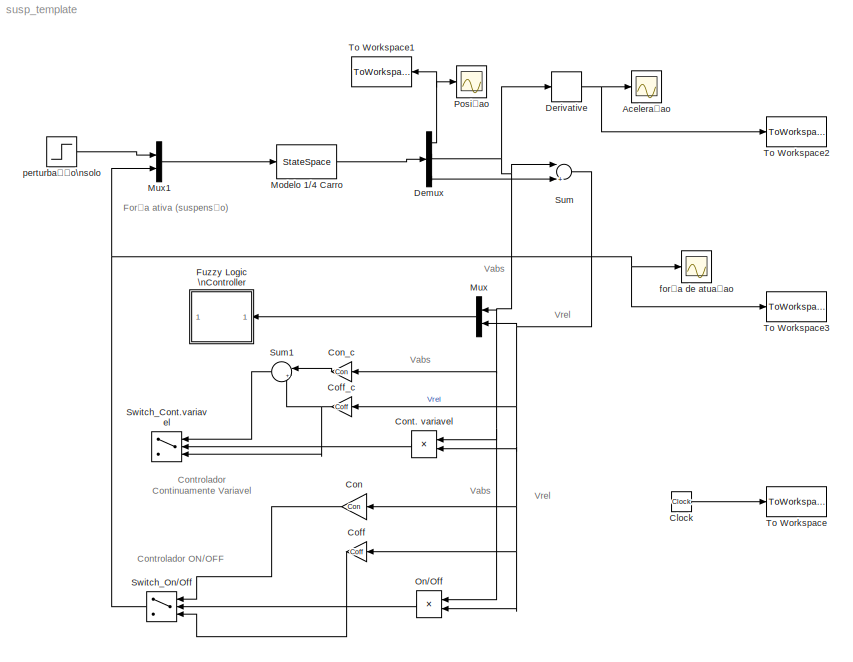
MODEL susp_template
KIND model
BLOCK [Scope] Aceleraçao
  DataFormat = StructureWithTime
  Floating = off
  NumInputPorts = 1
  Ports = [1]
  SampleTime = 0
  SaveName = Aceleraçao
  TimeRange = 2
  YMax = 1
  YMin = -2
BLOCK [Clock] Clock
  Decimation = 10
BLOCK [Gain] Coff
  Gain = Coff
BLOCK [Gain] Coff_c
  Gain = Coff
BLOCK [Gain] Con
  Gain = Con
BLOCK [Gain] Con_c
  Gain = Con
BLOCK [Product] Cont. variavel
  InputSameDT = off
  Ports = [2, 1]
  RndMeth = Floor
BLOCK [Demux] Demux
  Ports = [1, 4]
BLOCK [Derivative] Derivative
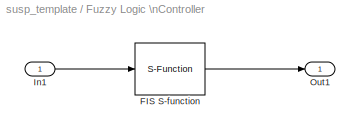
BLOCK [SubSystem] Fuzzy Logic \nController
  AncestorBlock = fuzblock/Fuzzy Logic \nController
  MaskDescription = FIS
  MaskDisplay = plot(0, -0.3, 6, -0.3, 0, 1.2, 6, 1.2, [0 6], [0 0], [1 2 3],[0 1 0],[2 3 4],[0 1 0],[3 4 5],[0 1 0])
  MaskEnableString = on
  MaskHelp = web(['file:///' docroot '/toolbox/fuzzy/fuzzylogiccontroller.html']);
  MaskHideContents = off
  MaskIconFrame = on
  MaskIconOpaque = on
  MaskIconRotate = none
  MaskIconUnits = autoscale
  MaskInitialization = fis = fuzblockmask(gcb,fis);
  MaskPromptString = FIS File or Structure:
  MaskSelfModifiable = on
  MaskStyleString = edit
  MaskToolTipString = on
  MaskTunableValueString = on
  MaskType = FIS
  MaskValueString = susp_fuz
  MaskVariables = fis=@1;
  MaskVisibilityString = on
  MinAlgLoopOccurrences = off
  Ports = [1, 1]
  RTWSystemCode = Auto
  TreatAsAtomicUnit = off
BLOCK [S-Function] Fuzzy Logic \nController/FIS S-function
  FunctionName = sffis
  Parameters = fis
  Ports = [1, 1]
  SFunctionModules = sfsup
BLOCK [Inport] Fuzzy Logic \nController/In1
  IconDisplay = Port number
BLOCK [Outport] Fuzzy Logic \nController/Out1
  BusOutputAsStruct = off
  IconDisplay = Port number
BLOCK [StateSpace] Modelo 1//4 Carro
  A = A
  B = B
  C = C
  D = D
  X0 = [0 0 0 0]
BLOCK [Mux] Mux
  DisplayOption = bar
  Inputs = 2
  Ports = [2, 1]
BLOCK [Mux] Mux1
  DisplayOption = bar
  Inputs = 2
  Ports = [2, 1]
BLOCK [Product] On//Off
  InputSameDT = off
  Ports = [2, 1]
  RndMeth = Floor
BLOCK [Scope] Posiçao
  DataFormat = StructureWithTime
  Floating = off
  NumInputPorts = 1
  Ports = [1]
  SampleTime = 0
  SaveName = posicao_chassis
  SaveToWorkspace = on
  TimeRange = 2
  YMax = 0.065
  YMin = -1.73472e-018
BLOCK [Sum] Sum
  InputSameDT = off
  Inputs = |+-
  OutDataTypeMode = Inherit via internal rule
  Ports = [2, 1]
BLOCK [Sum] Sum1
  IconShape = round
  InputSameDT = off
  Inputs = |++
  OutDataTypeMode = Inherit via internal rule
  Ports = [2, 1]
BLOCK [Switch] Switch_Cont.variavel
  InputSameDT = off
BLOCK [Switch] Switch_On//Off
  InputSameDT = off
BLOCK [ToWorkspace] To Workspace
  MaxDataPoints = inf
  SampleTime = -1
  SaveFormat = Array
  VariableName = tempo
BLOCK [ToWorkspace] To Workspace1
  MaxDataPoints = inf
  SampleTime = -1
  SaveFormat = Array
  VariableName = pos
BLOCK [ToWorkspace] To Workspace2
  MaxDataPoints = inf
  SampleTime = -1
  SaveFormat = Array
  VariableName = acel
BLOCK [ToWorkspace] To Workspace3
  MaxDataPoints = inf
  SampleTime = -1
  SaveFormat = Array
  VariableName = forca
BLOCK [Scope] força de atuaçao
  DataFormat = StructureWithTime
  Floating = off
  NumInputPorts = 1
  Ports = [1]
  SampleTime = 0
  SaveName = Aceleraao1
  TimeRange = 2
  YMax = 1
  YMin = -2
BLOCK [Step] perturbação\nsolo
  After = 0.05
  SampleTime = 0
  Time = 0
  VectorParams1D = off
  ZeroCross = off
ANNOTATION (root): Controlador ON/OFF
ANNOTATION (root): Controlador\nContinuamente Variavel
ANNOTATION (root): Força ativa (suspensão)
ANNOTATION (root): Vabs
ANNOTATION (root): Vrel
LINE Clock:1 -> To Workspace:1
LINE Coff:1 -> Switch_On//Off:3
NET Coff_c:1 -> Sum1:2, Switch_Cont.variavel:3
LINE Con:1 -> Switch_On//Off:1
LINE Con_c:1 -> Sum1:1
LINE Cont. variavel:1 -> Switch_Cont.variavel:2
NET Demux:1 -> Posiçao:1, To Workspace1:1
NET Demux:2 -> Con_c:1, Cont. variavel:1, Derivative:1, Mux:1, On//Off:1, Sum:1
LINE Demux:4 -> Sum:2
NET Derivative:1 -> Aceleraçao:1, To Workspace2:1
LINE Fuzzy Logic \nController/FIS S-function:1 -> Fuzzy Logic \nController/Out1:1
LINE Fuzzy Logic \nController/In1:1 -> Fuzzy Logic \nController/FIS S-function:1
LINE Modelo 1//4 Carro:1 -> Demux:1
LINE Mux1:1 -> Modelo 1//4 Carro:1
LINE Mux:1 -> Fuzzy Logic \nController:1
LINE On//Off:1 -> Switch_On//Off:2
LINE Sum1:1 -> Switch_Cont.variavel:1
NET Sum:1 -> Coff:1, Coff_c:1, Con:1, Cont. variavel:2, Mux:2, On//Off:2
NET Switch_On//Off:1 -> Mux1:2, To Workspace3:1, força de atuaçao:1
LINE perturbação\nsolo:1 -> Mux1:1
note: NET lines group one-source signal fan-out (src -> all destinations, sorted); 1:1 wires keep LINE
